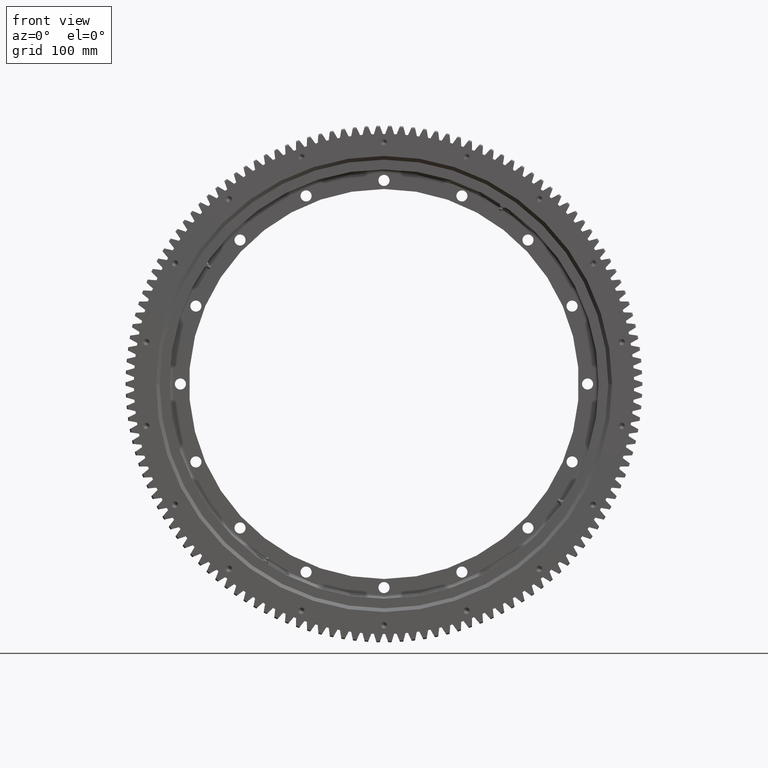
[diagram: clean part render]
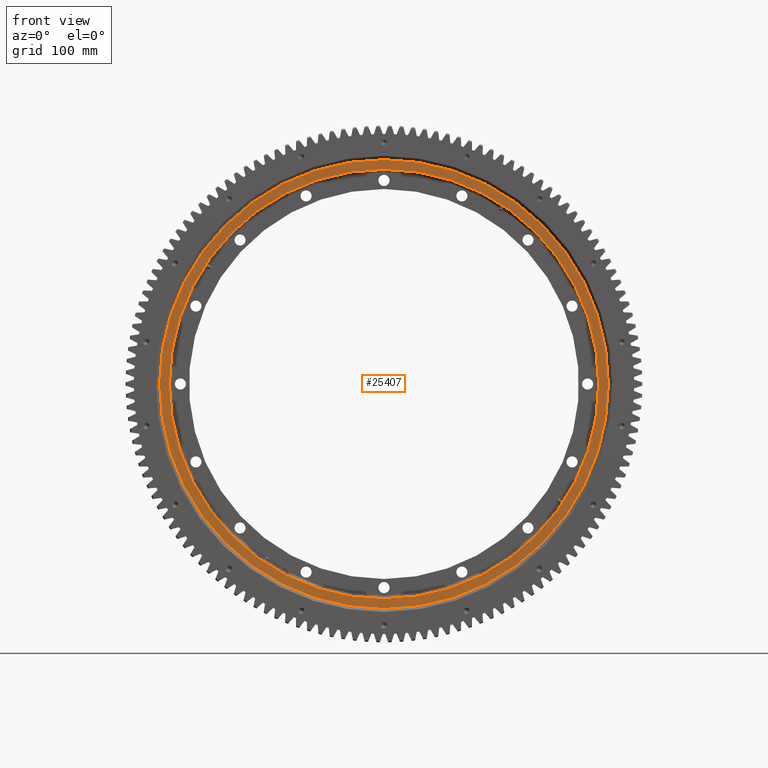
[diagram: same view with one face highlighted and labeled with its STEP entity id]
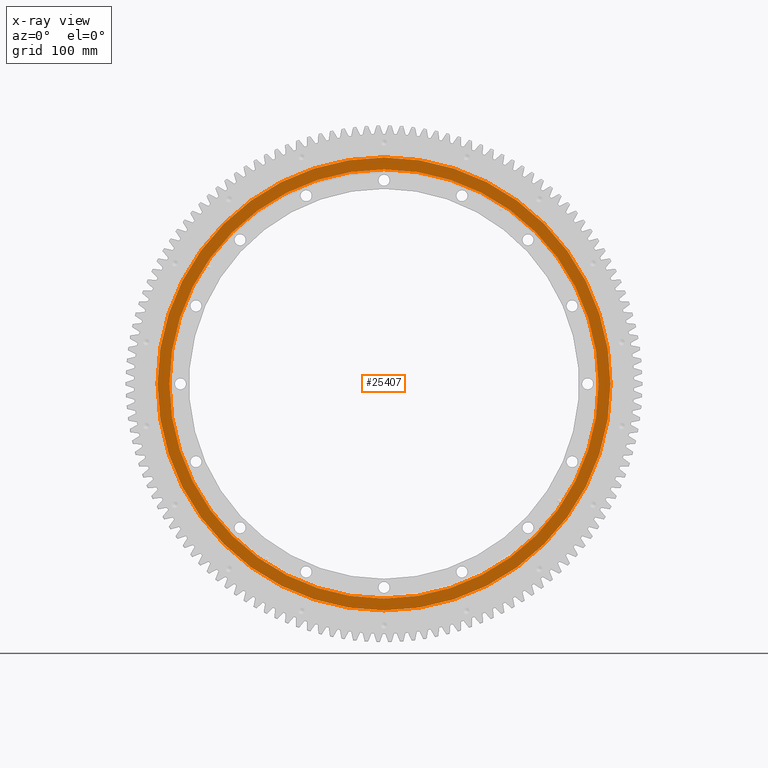
[diagram: x-ray of the same camera — body ghosted, the highlighted face saturated]
A machine part, front view. The second image highlights one B-rep face of the part: STEP entity #25407.
The next image is the same camera in x-ray: the body ghosted, the highlighted face saturated — about 0% of this face is hidden behind the body in this view.
In plain terms, the highlighted planar face has unit normal (-0, 1, -0).
Its self-contained STEP definition (entity closure, byte-faithful):
#145 = AXIS2_PLACEMENT_3D ( 'NONE', #18671, #11360, #3766 ) ;
#1432 = DIRECTION ( 'NONE',  ( -0.0000000000000000000, 1.000000000000000000, -2.727064569436389700E-017 ) ) ;
#2685 = DIRECTION ( 'NONE',  ( 0.0000000000000000000, 2.982332623455829000E-017, 1.000000000000000000 ) ) ;
#2696 = CARTESIAN_POINT ( 'NONE',  ( 0.0000000000000000000, -18.00000000000002100, 317.0000000000000600 ) ) ;
#2733 = DIRECTION ( 'NONE',  ( -0.0000000000000000000, 1.000000000000000000, -2.727064569436389700E-017 ) ) ;
#2827 = PLANE ( 'NONE',  #27937 ) ;
#2903 = DIRECTION ( 'NONE',  ( -0.0000000000000000000, 1.000000000000000000, -2.727064569436389700E-017 ) ) ;
#2908 = DIRECTION ( 'NONE',  ( 0.0000000000000000000, 2.727064569436389700E-017, 1.000000000000000000 ) ) ;
#3269 = CARTESIAN_POINT ( 'NONE',  ( 0.0000000000000000000, -18.00000000000002800, -2.653607264106575800E-015 ) ) ;
#3766 = DIRECTION ( 'NONE',  ( 0.0000000000000000000, 2.826433362080336700E-017, 1.000000000000000000 ) ) ;
#5941 = EDGE_CURVE ( 'NONE', #6774, #35835, #6674, .T. ) ;
#6674 = CIRCLE ( 'NONE', #8684, 349.0000000000000000 ) ;
#6774 = VERTEX_POINT ( 'NONE', #24861 ) ;
#7386 = EDGE_LOOP ( 'NONE', ( #35187, #33660 ) ) ;
#8684 = AXIS2_PLACEMENT_3D ( 'NONE', #3269, #2733, #2685 ) ;
#11360 = DIRECTION ( 'NONE',  ( -0.0000000000000000000, 1.000000000000000000, -2.727064569436389700E-017 ) ) ;
#11720 = CARTESIAN_POINT ( 'NONE',  ( 4.274017329024262400E-014, -18.00000000000003900, -349.0000000000000000 ) ) ;
#11956 = EDGE_CURVE ( 'NONE', #35835, #6774, #30752, .T. ) ;
#13948 = ORIENTED_EDGE ( 'NONE', *, *, #27987, .F. ) ;
#14120 = AXIS2_PLACEMENT_3D ( 'NONE', #31879, #15596, #15710 ) ;
#15512 = EDGE_LOOP ( 'NONE', ( #20092, #13948 ) ) ;
#15582 = FACE_OUTER_BOUND ( 'NONE', #15512, .T. ) ;
#15596 = DIRECTION ( 'NONE',  ( -0.0000000000000000000, 1.000000000000000000, -2.727064569436389700E-017 ) ) ;
#15710 = DIRECTION ( 'NONE',  ( 0.0000000000000000000, 2.982332623455829000E-017, 1.000000000000000000 ) ) ;
#16299 = CIRCLE ( 'NONE', #20260, 368.2500000000000600 ) ;
#17397 = FACE_BOUND ( 'NONE', #7386, .T. ) ;
#17519 = CARTESIAN_POINT ( 'NONE',  ( 0.0000000000000000000, -18.00000000000002500, 368.2500000000000600 ) ) ;
#18495 = CARTESIAN_POINT ( 'NONE',  ( 0.0000000000000000000, -18.00000000000003600, -3.553121410813603800E-016 ) ) ;
#18671 = CARTESIAN_POINT ( 'NONE',  ( 0.0000000000000000000, -18.00000000000003600, -3.553121410813603800E-016 ) ) ;
#20092 = ORIENTED_EDGE ( 'NONE', *, *, #24918, .F. ) ;
#20260 = AXIS2_PLACEMENT_3D ( 'NONE', #18495, #1432, #21326 ) ;
#21326 = DIRECTION ( 'NONE',  ( 0.0000000000000000000, 2.826433362080336700E-017, 1.000000000000000000 ) ) ;
#22288 = CIRCLE ( 'NONE', #145, 368.2500000000000600 ) ;
#23922 = VERTEX_POINT ( 'NONE', #26296 ) ;
#24861 = CARTESIAN_POINT ( 'NONE',  ( 0.0000000000000000000, -18.00000000000001800, 349.0000000000000000 ) ) ;
#24918 = EDGE_CURVE ( 'NONE', #34924, #23922, #22288, .T. ) ;
#25407 = ADVANCED_FACE ( 'NONE', ( #17397, #15582 ), #2827, .F. ) ;
#26296 = CARTESIAN_POINT ( 'NONE',  ( 4.509761837860128800E-014, -18.00000000000004600, -368.2500000000000600 ) ) ;
#27937 = AXIS2_PLACEMENT_3D ( 'NONE', #2696, #2903, #2908 ) ;
#27987 = EDGE_CURVE ( 'NONE', #23922, #34924, #16299, .T. ) ;
#30752 = CIRCLE ( 'NONE', #14120, 349.0000000000000000 ) ;
#31879 = CARTESIAN_POINT ( 'NONE',  ( 0.0000000000000000000, -18.00000000000002800, -2.653607264106575800E-015 ) ) ;
#33660 = ORIENTED_EDGE ( 'NONE', *, *, #11956, .T. ) ;
#34924 = VERTEX_POINT ( 'NONE', #17519 ) ;
#35187 = ORIENTED_EDGE ( 'NONE', *, *, #5941, .T. ) ;
#35835 = VERTEX_POINT ( 'NONE', #11720 ) ;